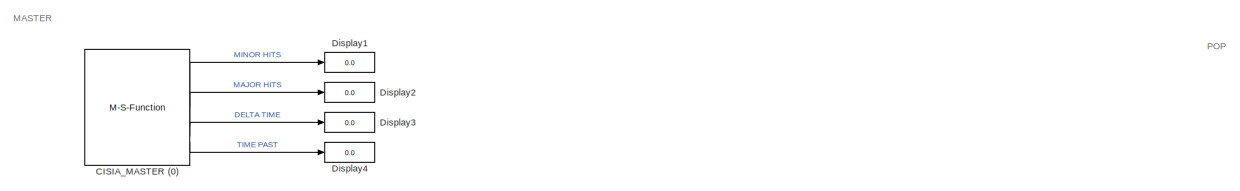
[diagram: root canvas - part 1/17, top left region]
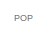
[diagram: root canvas - part 2/17, top right region]
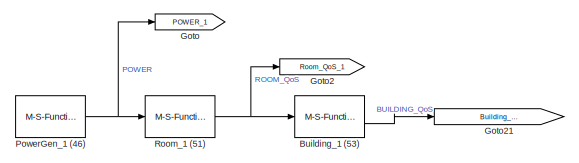
[diagram: root canvas - part 3/17, top center region]
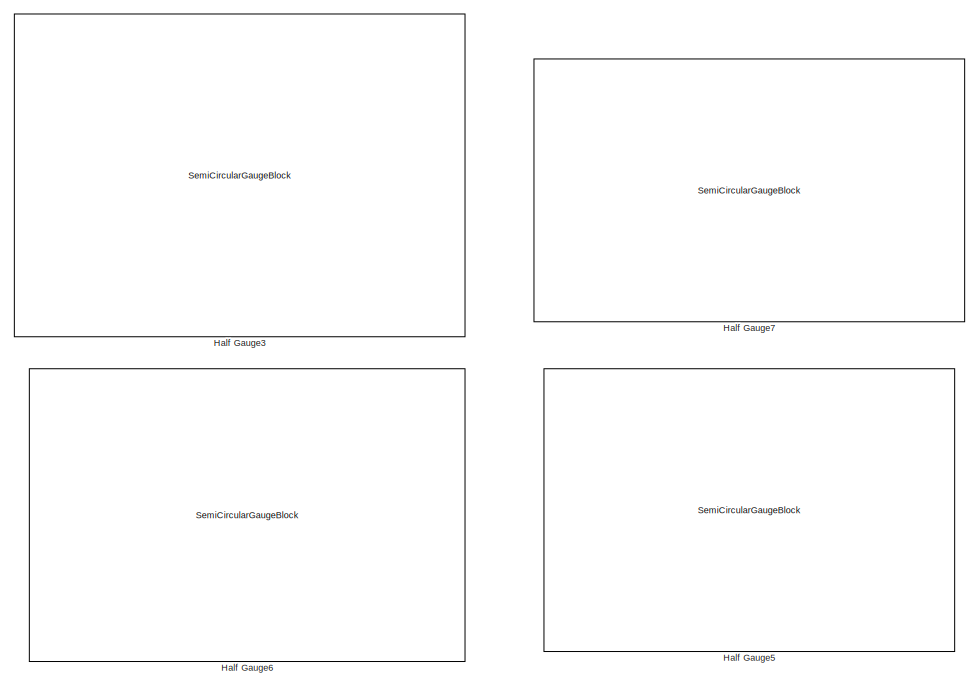
[diagram: root canvas - part 4/17, top left region]
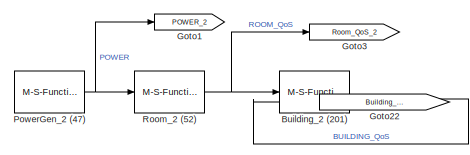
[diagram: root canvas - part 5/17, top right region]
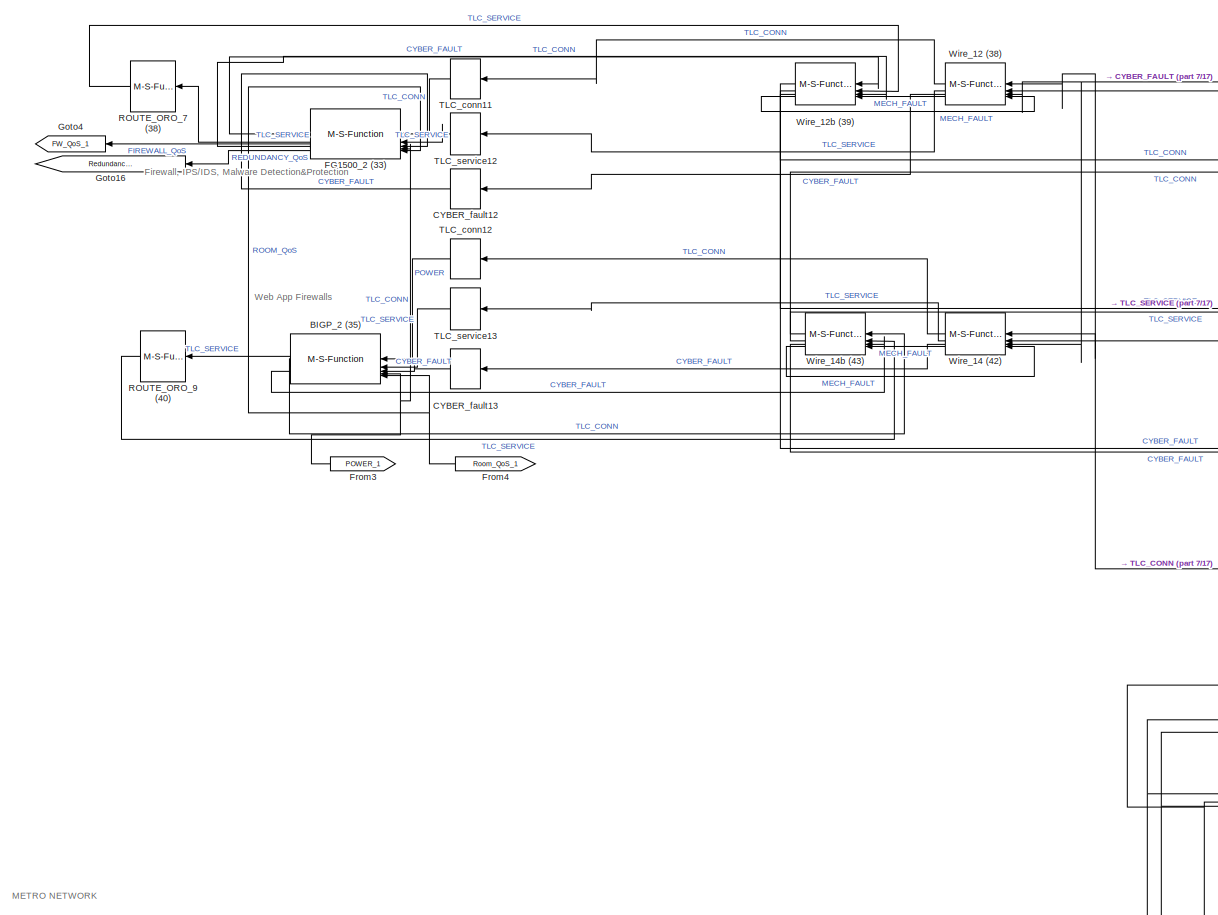
[diagram: root canvas - part 6/17, top left region]
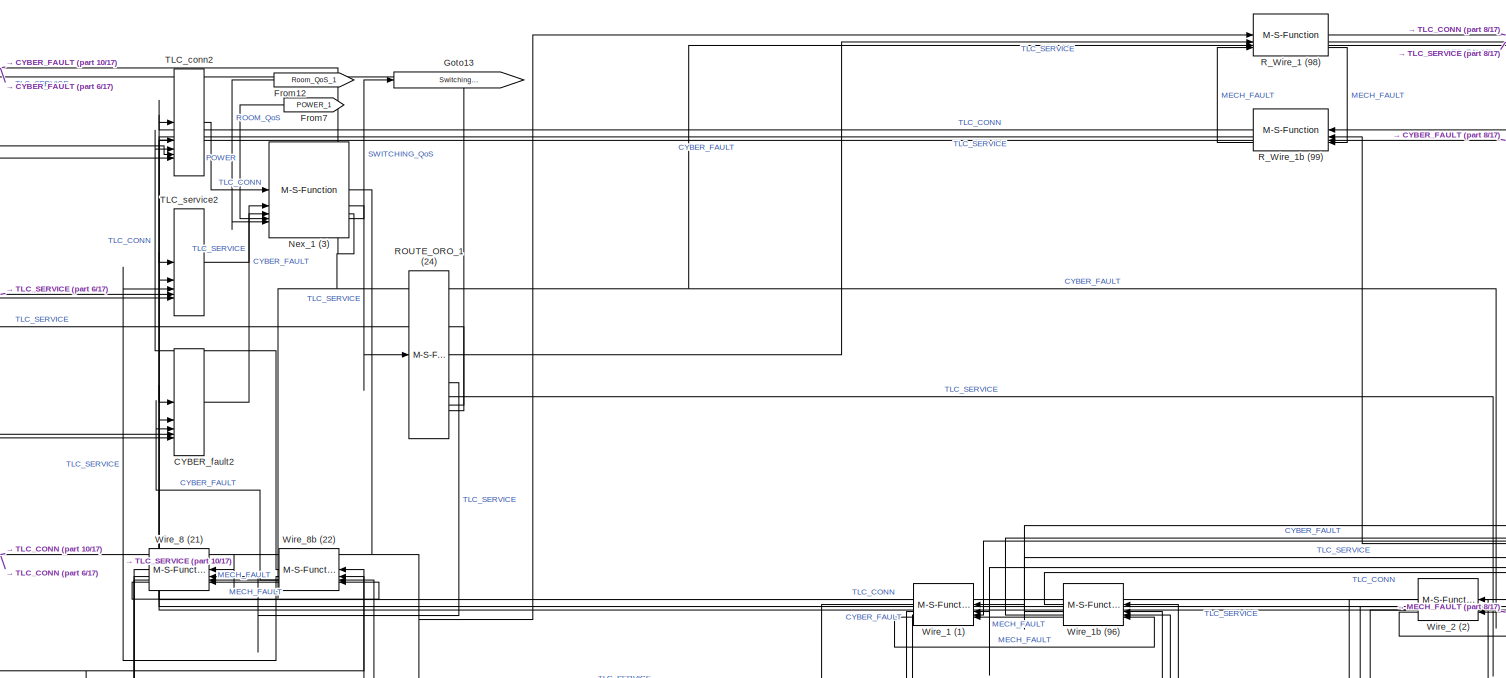
[diagram: root canvas - part 7/17, top center region]
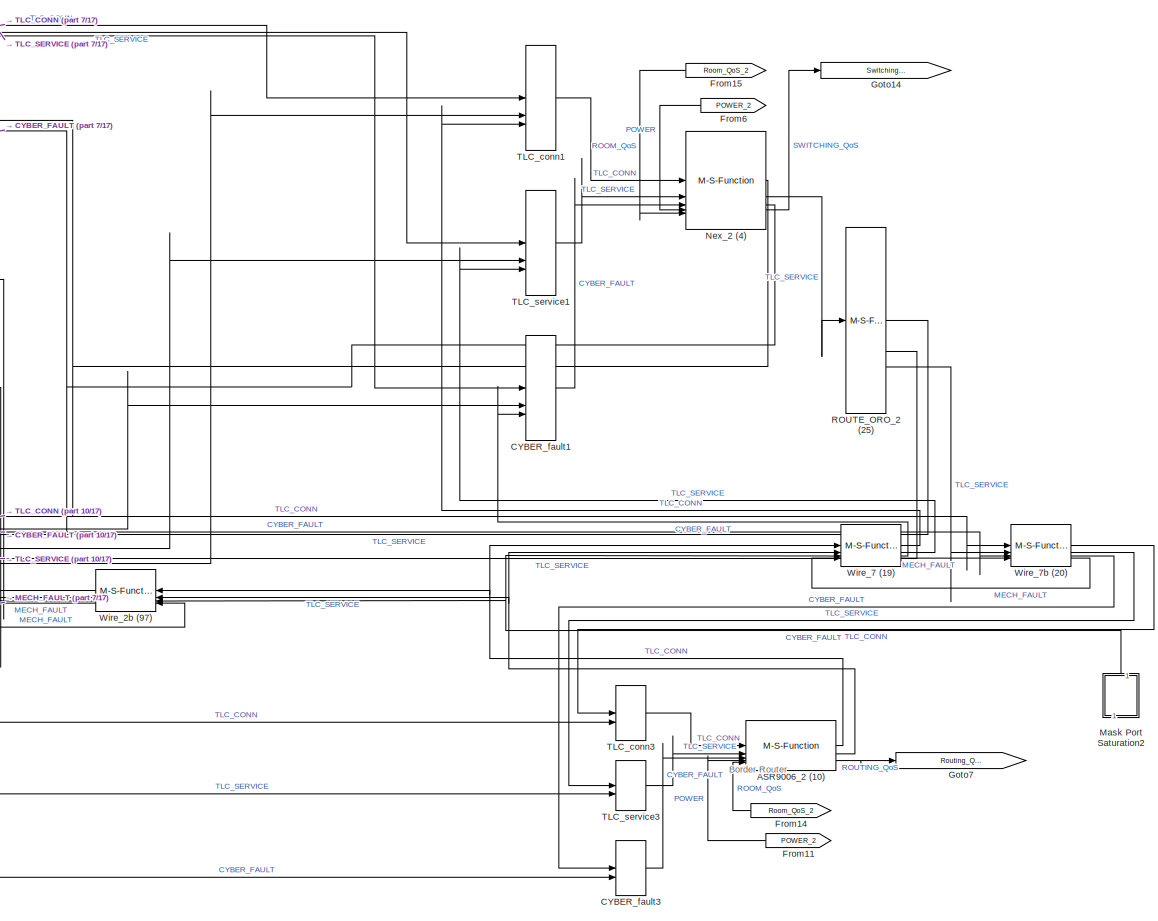
[diagram: root canvas - part 8/17, top right region]
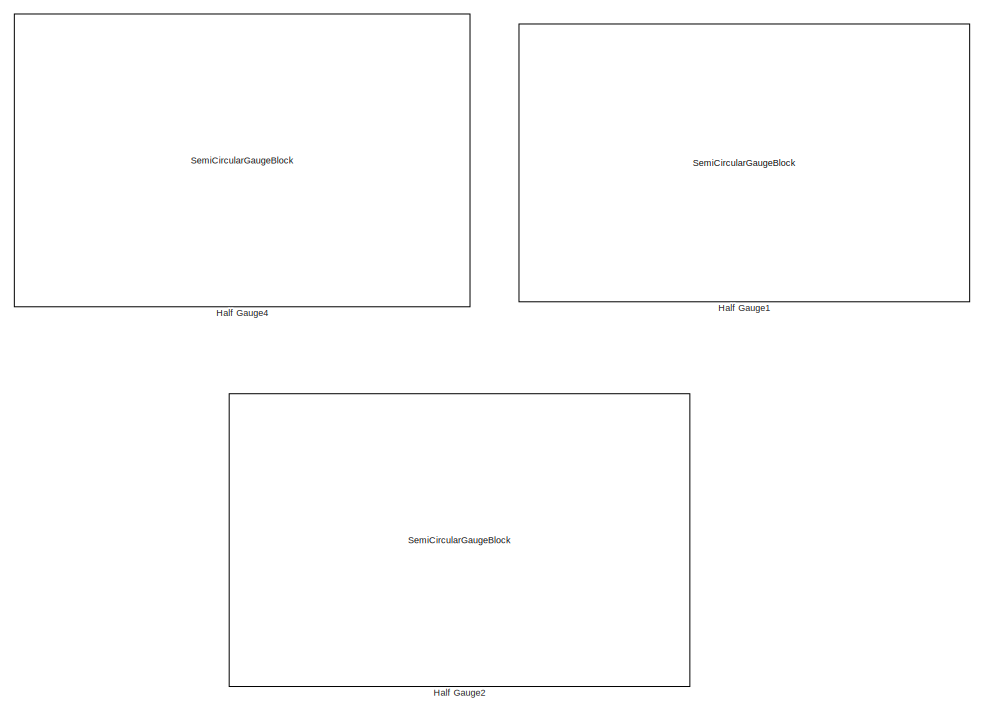
[diagram: root canvas - part 9/17, middle left region]
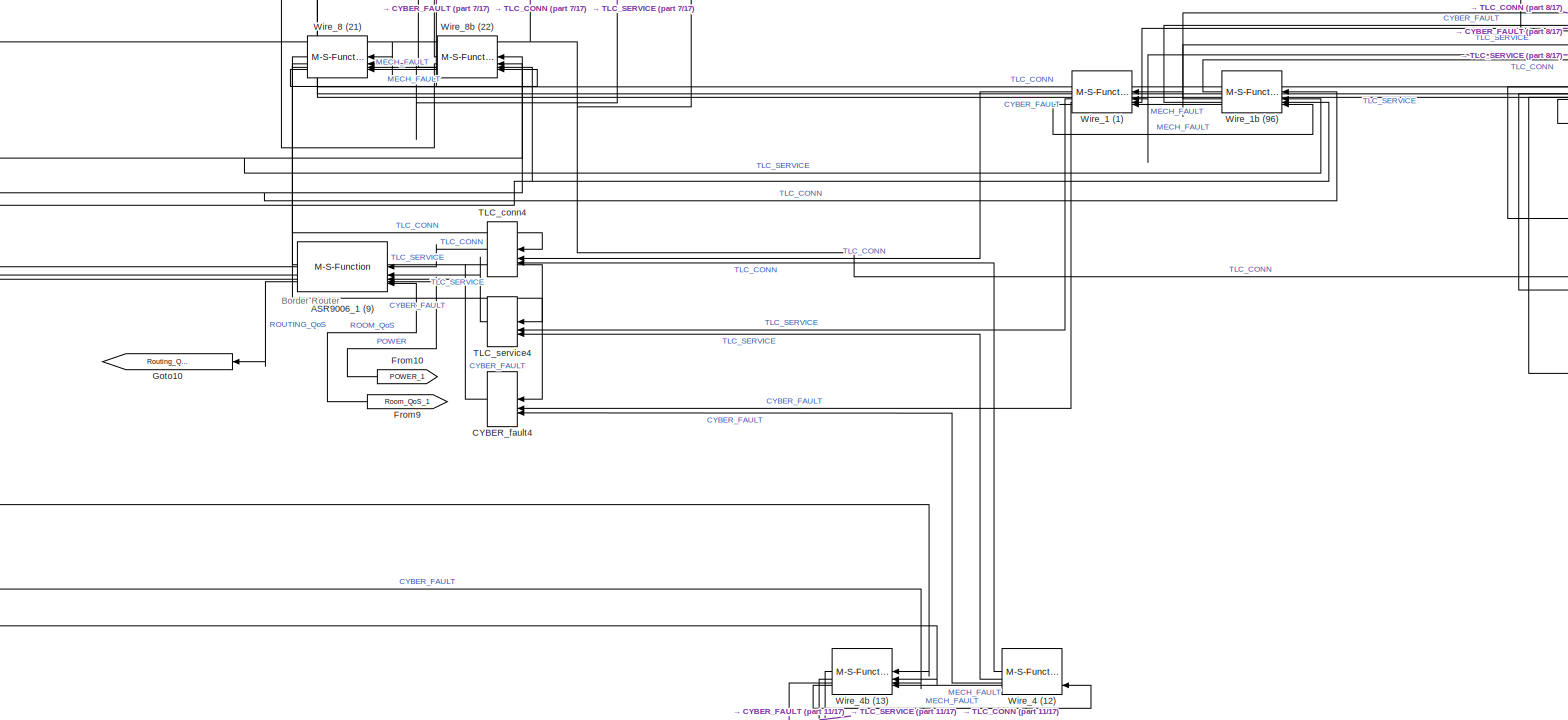
[diagram: root canvas - part 10/17, central region]
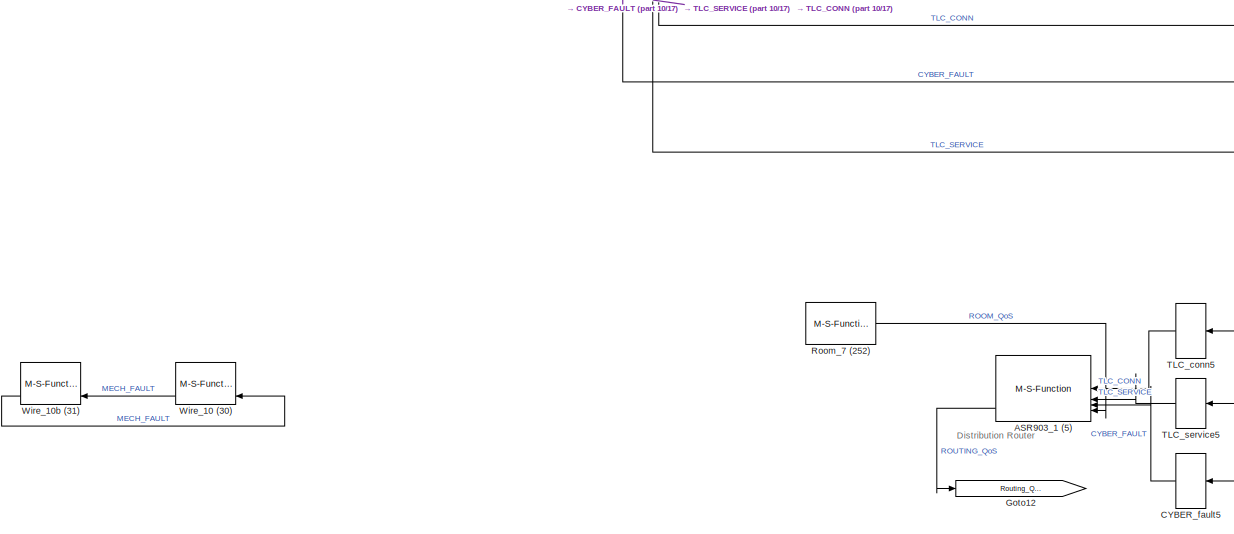
[diagram: root canvas - part 11/17, central region]
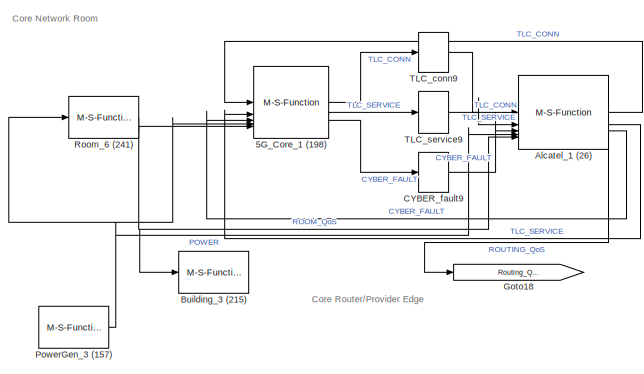
[diagram: root canvas - part 12/17, middle left region]
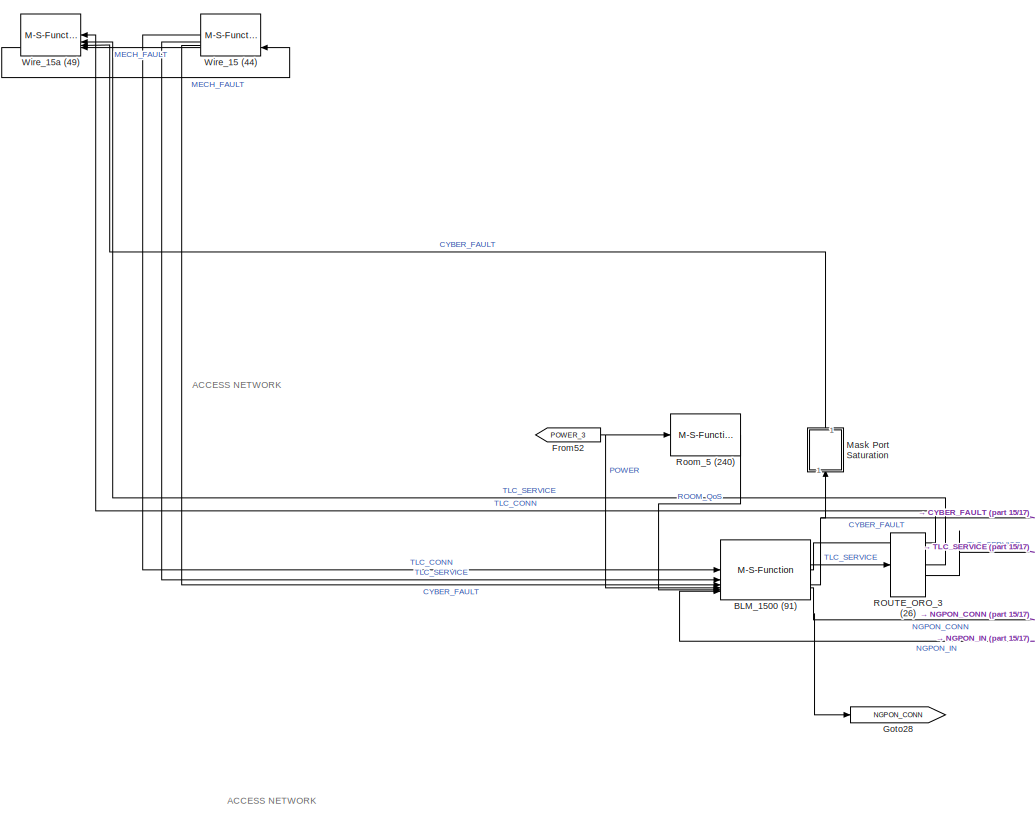
[diagram: root canvas - part 13/17, bottom right region]
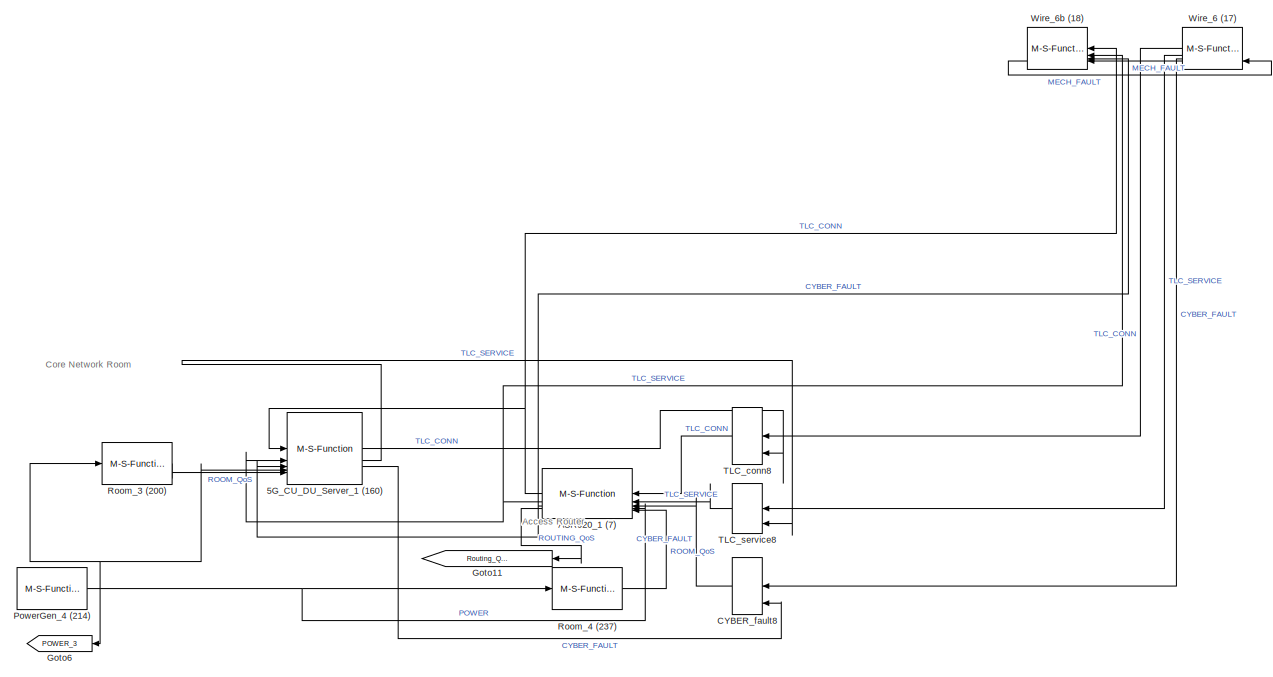
[diagram: root canvas - part 14/17, bottom center region]
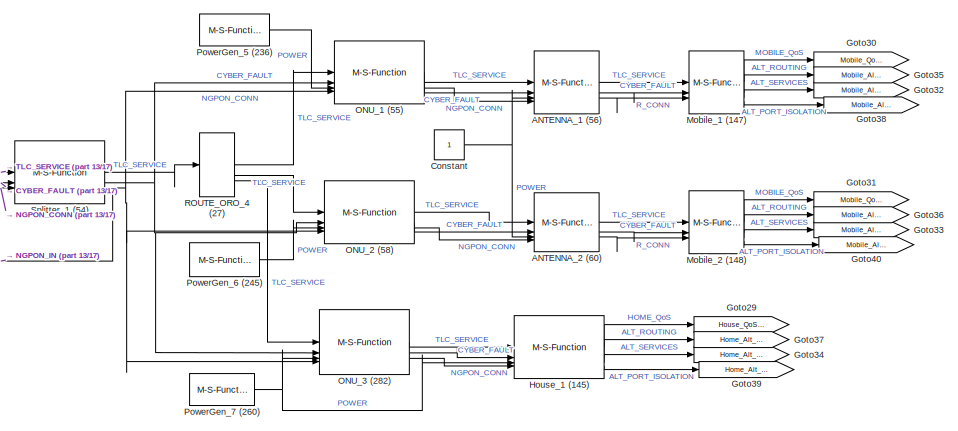
[diagram: root canvas - part 15/17, bottom right region]
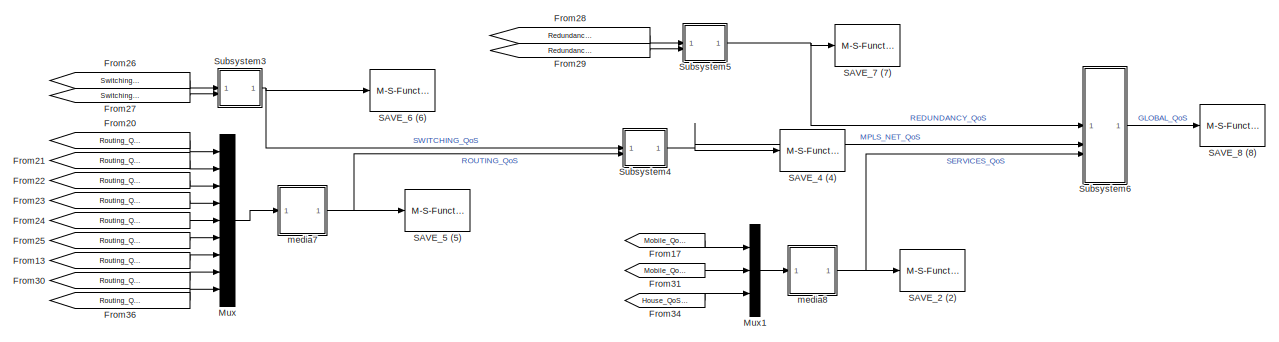
[diagram: root canvas - part 16/17, bottom center region]
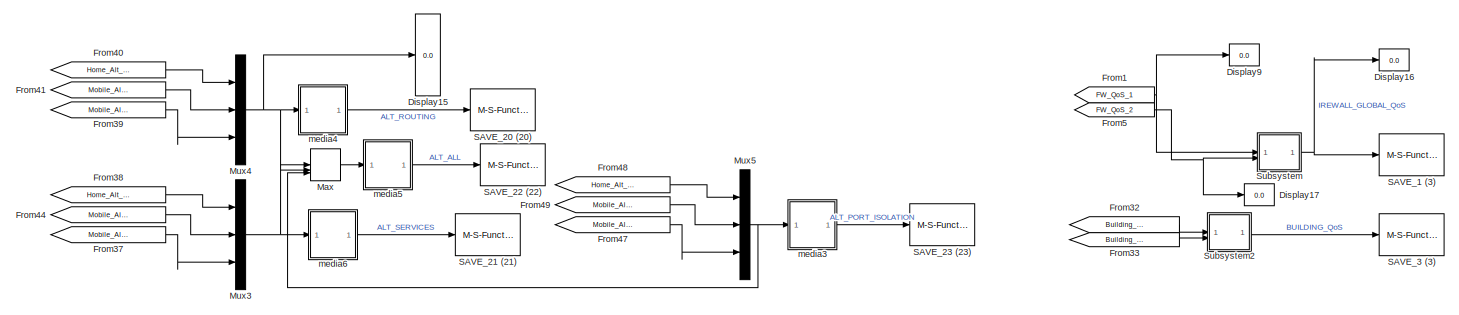
[diagram: root canvas - part 17/17, bottom left region]
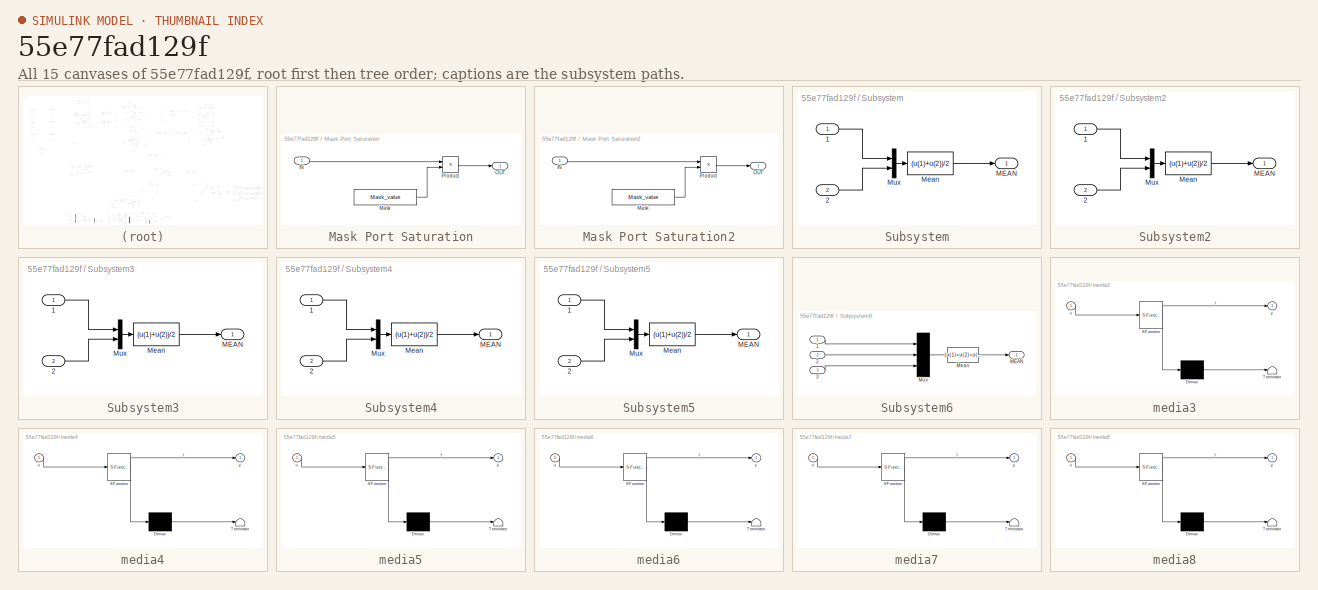
[diagram: thumbnail index - all 15 canvases of the model, root first then tree order]
MODEL slx_55e77fad129f
KIND model
CONFIG AbsTol = auto
CONFIG EnableMultiTasking = off
CONFIG FixedStep = auto
CONFIG MaxStep = auto
CONFIG MinStep = auto
CONFIG RelTol = 1e-3
CONFIG SampleTimeConstraint = Unconstrained
CONFIG SolverName = VariableStepAuto
CONFIG StartTime = 0.0
CONFIG StopTime = 2
BLOCK [M-S-Function] 5G_CU_DU_Server_1 (160)
  FunctionName = cisia_msfun
  Parameters = Parameter1, Parameter2, Parameter3, resources, Parameter10, codeupdate, step_received, step_computed, dynamic_computed, step_sended, id_entity, id_project, id_type, name_type, color
BLOCK [M-S-Function] 5G_Core_1 (198)
  FunctionName = cisia_msfun
  Parameters = Parameter1, Parameter2, Parameter3, resources, Parameter10, codeupdate, step_received, step_computed, dynamic_computed, step_sended, id_entity, id_project, id_type, name_type, color
BLOCK [M-S-Function] ANTENNA_1 (56)
  FunctionName = cisia_msfun
  Parameters = Parameter1, Parameter2, Parameter3, resources, Parameter10, codeupdate, step_received, step_computed, dynamic_computed, step_sended, id_entity, id_project, id_type, name_type, color
BLOCK [M-S-Function] ANTENNA_2 (60)
  FunctionName = cisia_msfun
  Parameters = Parameter1, Parameter2, Parameter3, resources, Parameter10, codeupdate, step_received, step_computed, dynamic_computed, step_sended, id_entity, id_project, id_type, name_type, color
BLOCK [M-S-Function] ASR9006_1 (9)
  FunctionName = cisia_msfun
  Parameters = Parameter1, Parameter2, Parameter3, resources, Parameter10, codeupdate, step_received, step_computed, dynamic_computed, step_sended, id_entity, id_project, id_type, name_type, color
BLOCK [M-S-Function] ASR9006_2 (10)
  FunctionName = cisia_msfun
  NameLocation = top
  Parameters = Parameter1, Parameter2, Parameter3, resources, Parameter10, codeupdate, step_received, step_computed, dynamic_computed, step_sended, id_entity, id_project, id_type, name_type, color
BLOCK [M-S-Function] ASR903_1 (5)
  FunctionName = cisia_msfun
  NameLocation = top
  Parameters = Parameter1, Parameter2, Parameter3, resources, Parameter10, codeupdate, step_received, step_computed, dynamic_computed, step_sended, id_entity, id_project, id_type, name_type, color
BLOCK [M-S-Function] ASR920_1 (7)
  FunctionName = cisia_msfun
  NameLocation = top
  Parameters = Parameter1, Parameter2, Parameter3, resources, Parameter10, codeupdate, step_received, step_computed, dynamic_computed, step_sended, id_entity, id_project, id_type, name_type, color
BLOCK [M-S-Function] Alcatel_1 (26)
  FunctionName = cisia_msfun
  Parameters = Parameter1, Parameter2, Parameter3, resources, Parameter10, codeupdate, step_received, step_computed, dynamic_computed, step_sended, id_entity, id_project, id_type, name_type, color
BLOCK [M-S-Function] BIGP_2 (35)
  FunctionName = cisia_msfun
  NameLocation = top
  Parameters = Parameter1, Parameter2, Parameter3, resources, Parameter10, codeupdate, step_received, step_computed, dynamic_computed, step_sended, id_entity, id_project, id_type, name_type, color
BLOCK [M-S-Function] BLM_1500 (91)
  FunctionName = cisia_msfun
  Parameters = Parameter1, Parameter2, Parameter3, resources, Parameter10, codeupdate, step_received, step_computed, dynamic_computed, step_sended, id_entity, id_project, id_type, name_type, color
BLOCK [M-S-Function] Building_1 (53)
  FunctionName = cisia_msfun
  Parameters = Parameter1, Parameter2, Parameter3, resources, Parameter10, codeupdate, step_received, step_computed, dynamic_computed, step_sended, id_entity, id_project, id_type, name_type, color
BLOCK [M-S-Function] Building_2 (201)
  FunctionName = cisia_msfun
  Parameters = Parameter1, Parameter2, Parameter3, resources, Parameter10, codeupdate, step_received, step_computed, dynamic_computed, step_sended, id_entity, id_project, id_type, name_type, color
BLOCK [M-S-Function] Building_3 (215)
  FunctionName = cisia_msfun
  Parameters = Parameter1, Parameter2, Parameter3, resources, Parameter10, codeupdate, step_received, step_computed, dynamic_computed, step_sended, id_entity, id_project, id_type, name_type, color
BLOCK [M-S-Function] CISIA_MASTER (0)
  FunctionName = cisia_msfun
  Parameters = Parameter1, Parameter2, Parameter3, resources, Parameter4, Parameter5, Parameter6, Parameter7, Parameter8, Parameter9,Parameter11
BLOCK [MinMax] CYBER_fault1
  Function = max
  Inputs = 6
BLOCK [MinMax] CYBER_fault12
  Function = max
  Inputs = 2
  NameLocation = top
BLOCK [MinMax] CYBER_fault13
  Function = max
  Inputs = 2
  NameLocation = top
BLOCK [MinMax] CYBER_fault2
  Function = max
  Inputs = 6
BLOCK [MinMax] CYBER_fault3
  Function = max
  Inputs = 4
BLOCK [MinMax] CYBER_fault4
  Function = max
  Inputs = 4
  NameLocation = top
BLOCK [MinMax] CYBER_fault5
  Function = max
  Inputs = 4
  NameLocation = top
BLOCK [MinMax] CYBER_fault8
  Function = max
  Inputs = 4
  NameLocation = top
BLOCK [MinMax] CYBER_fault9
  Function = max
  Inputs = 2
BLOCK [Constant] Constant
BLOCK [Display] Display1
  Decimation = 1
BLOCK [Display] Display15
  Decimation = 1
BLOCK [Display] Display16
  Decimation = 1
BLOCK [Display] Display17
  Decimation = 1
BLOCK [Display] Display2
  Decimation = 1
BLOCK [Display] Display3
  Decimation = 1
BLOCK [Display] Display4
  Decimation = 1
BLOCK [Display] Display9
  Decimation = 1
BLOCK [M-S-Function] FG1500_2 (33)
  FunctionName = cisia_msfun
  NameLocation = top
  Parameters = Parameter1, Parameter2, Parameter3, resources, Parameter10, codeupdate, step_received, step_computed, dynamic_computed, step_sended, id_entity, id_project, id_type, name_type, color
BLOCK [From] From1
  GotoTag = FW_QoS_1
BLOCK [From] From10
  GotoTag = POWER_1
  NameLocation = top
BLOCK [From] From11
  GotoTag = POWER_2
  NameLocation = top
BLOCK [From] From12
  GotoTag = Room_QoS_1
  NameLocation = top
BLOCK [From] From13
  GotoTag = Routing_QoS_Alcatel_1
BLOCK [From] From14
  GotoTag = Room_QoS_2
  NameLocation = top
BLOCK [From] From15
  GotoTag = Room_QoS_2
  NameLocation = top
BLOCK [From] From17
  GotoTag = Mobile_QoS_1
BLOCK [From] From20
  GotoTag = Routing_QoS_9006_1
BLOCK [From] From21
  GotoTag = Routing_QoS_9006_2
BLOCK [From] From22
  GotoTag = Routing_QoS_903_1
BLOCK [From] From23
  GotoTag = Routing_QoS_903_2
BLOCK [From] From24
  GotoTag = Routing_QoS_920_1
BLOCK [From] From25
  GotoTag = Routing_QoS_920_2
BLOCK [From] From26
  GotoTag = Switching_QoS_Nex_1
BLOCK [From] From27
  GotoTag = Switching_QoS_Nex_2
BLOCK [From] From28
  GotoTag = Redundancy_QoS_FG1500_1
BLOCK [From] From29
  GotoTag = Redundancy_QoS_FG1500_2
BLOCK [From] From3
  GotoTag = POWER_1
  NameLocation = top
BLOCK [From] From30
  GotoTag = Routing_QoS_Alcatel_2
BLOCK [From] From31
  GotoTag = Mobile_QoS_2
BLOCK [From] From32
  GotoTag = Building_QoS_1
BLOCK [From] From33
  GotoTag = Building_QoS_2
BLOCK [From] From34
  GotoTag = House_QoS_1
BLOCK [From] From36
  GotoTag = Routing_QoS_7606a
BLOCK [From] From37
  GotoTag = Mobile_Alt_Serv_2
BLOCK [From] From38
  GotoTag = Home_Alt_Serv_1
BLOCK [From] From39
  GotoTag = Mobile_Alt_Rout_2
BLOCK [From] From4
  GotoTag = Room_QoS_1
  NameLocation = top
BLOCK [From] From40
  GotoTag = Home_Alt_Rout_1
BLOCK [From] From41
  GotoTag = Mobile_Alt_Rout_1
BLOCK [From] From44
  GotoTag = Mobile_Alt_Serv_1
BLOCK [From] From47
  GotoTag = Mobile_Alt_Port_2
BLOCK [From] From48
  GotoTag = Home_Alt_Port_1
BLOCK [From] From49
  GotoTag = Mobile_Alt_Port_1
BLOCK [From] From5
  GotoTag = FW_QoS_2
BLOCK [From] From52
  GotoTag = POWER_3
BLOCK [From] From6
  GotoTag = POWER_2
  NameLocation = top
BLOCK [From] From7
  GotoTag = POWER_1
  NameLocation = top
BLOCK [From] From9
  GotoTag = Room_QoS_1
  NameLocation = top
BLOCK [Goto] Goto
  GotoTag = POWER_1
BLOCK [Goto] Goto1
  GotoTag = POWER_2
BLOCK [Goto] Goto10
  GotoTag = Routing_QoS_9006_1
  NameLocation = top
BLOCK [Goto] Goto11
  GotoTag = Routing_QoS_920_1
  NameLocation = top
BLOCK [Goto] Goto12
  GotoTag = Routing_QoS_903_1
BLOCK [Goto] Goto13
  GotoTag = Switching_QoS_Nex_1
BLOCK [Goto] Goto14
  GotoTag = Switching_QoS_Nex_2
BLOCK [Goto] Goto16
  GotoTag = Redundancy_QoS_FG1500_2
  NameLocation = top
BLOCK [Goto] Goto18
  GotoTag = Routing_QoS_Alcatel_1
BLOCK [Goto] Goto2
  GotoTag = Room_QoS_1
BLOCK [Goto] Goto21
  GotoTag = Building_QoS_1
BLOCK [Goto] Goto22
  GotoTag = Building_QoS_2
BLOCK [Goto] Goto28
  GotoTag = NGPON_CONN
BLOCK [Goto] Goto29
  GotoTag = House_QoS_1
BLOCK [Goto] Goto3
  GotoTag = Room_QoS_2
BLOCK [Goto] Goto30
  GotoTag = Mobile_QoS_1
BLOCK [Goto] Goto31
  GotoTag = Mobile_QoS_2
BLOCK [Goto] Goto32
  GotoTag = Mobile_Alt_Serv_1
BLOCK [Goto] Goto33
  GotoTag = Mobile_Alt_Serv_2
BLOCK [Goto] Goto34
  GotoTag = Home_Alt_Serv_1
BLOCK [Goto] Goto35
  GotoTag = Mobile_Alt_Rout_1
BLOCK [Goto] Goto36
  GotoTag = Mobile_Alt_Rout_2
BLOCK [Goto] Goto37
  GotoTag = Home_Alt_Rout_1
BLOCK [Goto] Goto38
  GotoTag = Mobile_Alt_Port_1
BLOCK [Goto] Goto39
  GotoTag = Home_Alt_Port_1
BLOCK [Goto] Goto4
  GotoTag = FW_QoS_1
  NameLocation = top
BLOCK [Goto] Goto40
  GotoTag = Mobile_Alt_Port_2
BLOCK [Goto] Goto6
  GotoTag = POWER_3
  NameLocation = top
BLOCK [Goto] Goto7
  GotoTag = Routing_QoS_9006_2
BLOCK [SemiCircularGaugeBlock] Half Gauge1
  ScaleMax = 1
BLOCK [SemiCircularGaugeBlock] Half Gauge2
  ScaleMax = 1
BLOCK [SemiCircularGaugeBlock] Half Gauge3
  ScaleMax = 1
BLOCK [SemiCircularGaugeBlock] Half Gauge4
  ScaleMax = 1
BLOCK [SemiCircularGaugeBlock] Half Gauge5
  ScaleMax = 1
BLOCK [SemiCircularGaugeBlock] Half Gauge6
  ScaleMax = 1
BLOCK [SemiCircularGaugeBlock] Half Gauge7
  ScaleMax = 1
BLOCK [M-S-Function] House_1 (145)
  FunctionName = cisia_msfun
  Parameters = Parameter1, Parameter2, Parameter3, resources, Parameter10, codeupdate, step_received, step_computed, dynamic_computed, step_sended, id_entity, id_project, id_type, name_type, color
BLOCK [SubSystem] Mask Port Saturation
  NameLocation = right
BLOCK [Inport] Mask Port Saturation/IN
BLOCK [Constant] Mask Port Saturation/Mask
  Value = Mask_value
BLOCK [Outport] Mask Port Saturation/OUT
BLOCK [Product] Mask Port Saturation/Product
BLOCK [SubSystem] Mask Port Saturation2
  NameLocation = right
BLOCK [Inport] Mask Port Saturation2/IN
BLOCK [Constant] Mask Port Saturation2/Mask
  Value = Mask_value
BLOCK [Outport] Mask Port Saturation2/OUT
BLOCK [Product] Mask Port Saturation2/Product
BLOCK [MinMax] Max
  Function = max
  Inputs = 3
BLOCK [M-S-Function] Mobile_1 (147)
  FunctionName = cisia_msfun
  Parameters = Parameter1, Parameter2, Parameter3, resources, Parameter10, codeupdate, step_received, step_computed, dynamic_computed, step_sended, id_entity, id_project, id_type, name_type, color
BLOCK [M-S-Function] Mobile_2 (148)
  FunctionName = cisia_msfun
  Parameters = Parameter1, Parameter2, Parameter3, resources, Parameter10, codeupdate, step_received, step_computed, dynamic_computed, step_sended, id_entity, id_project, id_type, name_type, color
BLOCK [Mux] Mux
  DisplayOption = bar
  Inputs = 9
BLOCK [Mux] Mux1
  DisplayOption = bar
  Inputs = 3
BLOCK [Mux] Mux3
  DisplayOption = bar
  Inputs = 3
BLOCK [Mux] Mux4
  DisplayOption = bar
  Inputs = 3
BLOCK [Mux] Mux5
  DisplayOption = bar
  Inputs = 3
BLOCK [M-S-Function] Nex_1 (3)
  FunctionName = cisia_msfun
  Parameters = Parameter1, Parameter2, Parameter3, resources, Parameter10, codeupdate, step_received, step_computed, dynamic_computed, step_sended, id_entity, id_project, id_type, name_type, color
BLOCK [M-S-Function] Nex_2 (4)
  FunctionName = cisia_msfun
  Parameters = Parameter1, Parameter2, Parameter3, resources, Parameter10, codeupdate, step_received, step_computed, dynamic_computed, step_sended, id_entity, id_project, id_type, name_type, color
BLOCK [M-S-Function] ONU_1 (55)
  FunctionName = cisia_msfun
  Parameters = Parameter1, Parameter2, Parameter3, resources, Parameter10, codeupdate, step_received, step_computed, dynamic_computed, step_sended, id_entity, id_project, id_type, name_type, color
BLOCK [M-S-Function] ONU_2 (58)
  FunctionName = cisia_msfun
  Parameters = Parameter1, Parameter2, Parameter3, resources, Parameter10, codeupdate, step_received, step_computed, dynamic_computed, step_sended, id_entity, id_project, id_type, name_type, color
BLOCK [M-S-Function] ONU_3 (282)
  FunctionName = cisia_msfun
  Parameters = Parameter1, Parameter2, Parameter3, resources, Parameter10, codeupdate, step_received, step_computed, dynamic_computed, step_sended, id_entity, id_project, id_type, name_type, color
BLOCK [M-S-Function] PowerGen_1 (46)
  FunctionName = cisia_msfun
  Parameters = Parameter1, Parameter2, Parameter3, resources, Parameter10, codeupdate, step_received, step_computed, dynamic_computed, step_sended, id_entity, id_project, id_type, name_type, color
BLOCK [M-S-Function] PowerGen_2 (47)
  FunctionName = cisia_msfun
  Parameters = Parameter1, Parameter2, Parameter3, resources, Parameter10, codeupdate, step_received, step_computed, dynamic_computed, step_sended, id_entity, id_project, id_type, name_type, color
BLOCK [M-S-Function] PowerGen_3 (157)
  FunctionName = cisia_msfun
  Parameters = Parameter1, Parameter2, Parameter3, resources, Parameter10, codeupdate, step_received, step_computed, dynamic_computed, step_sended, id_entity, id_project, id_type, name_type, color
BLOCK [M-S-Function] PowerGen_4 (214)
  FunctionName = cisia_msfun
  Parameters = Parameter1, Parameter2, Parameter3, resources, Parameter10, codeupdate, step_received, step_computed, dynamic_computed, step_sended, id_entity, id_project, id_type, name_type, color
BLOCK [M-S-Function] PowerGen_5 (236)
  FunctionName = cisia_msfun
  Parameters = Parameter1, Parameter2, Parameter3, resources, Parameter10, codeupdate, step_received, step_computed, dynamic_computed, step_sended, id_entity, id_project, id_type, name_type, color
BLOCK [M-S-Function] PowerGen_6 (245)
  FunctionName = cisia_msfun
  Parameters = Parameter1, Parameter2, Parameter3, resources, Parameter10, codeupdate, step_received, step_computed, dynamic_computed, step_sended, id_entity, id_project, id_type, name_type, color
BLOCK [M-S-Function] PowerGen_7 (260)
  FunctionName = cisia_msfun
  Parameters = Parameter1, Parameter2, Parameter3, resources, Parameter10, codeupdate, step_received, step_computed, dynamic_computed, step_sended, id_entity, id_project, id_type, name_type, color
BLOCK [M-S-Function] ROUTE_ORO_1 (24)
  FunctionName = cisia_msfun
  Parameters = Parameter1, Parameter2, Parameter3, Parameter4, Parameter5, Parameter6, Parameter7
BLOCK [M-S-Function] ROUTE_ORO_2 (25)
  FunctionName = cisia_msfun
  Parameters = Parameter1, Parameter2, Parameter3, Parameter4, Parameter5, Parameter6, Parameter7
BLOCK [M-S-Function] ROUTE_ORO_3 (26)
  FunctionName = cisia_msfun
  Parameters = Parameter1, Parameter2, Parameter3, Parameter4, Parameter5, Parameter6, Parameter7
BLOCK [M-S-Function] ROUTE_ORO_4 (27)
  FunctionName = cisia_msfun
  Parameters = Parameter1, Parameter2, Parameter3, Parameter4, Parameter5, Parameter6, Parameter7
BLOCK [M-S-Function] ROUTE_ORO_7 (38)
  FunctionName = cisia_msfun
  NameLocation = top
  Parameters = Parameter1, Parameter2, Parameter3, Parameter4, Parameter5, Parameter6, Parameter7
BLOCK [M-S-Function] ROUTE_ORO_9 (40)
  FunctionName = cisia_msfun
  NameLocation = top
  Parameters = Parameter1, Parameter2, Parameter3, Parameter4, Parameter5, Parameter6, Parameter7
BLOCK [M-S-Function] R_Wire_1 (98)
  FunctionName = cisia_msfun
  Parameters = Parameter1, Parameter2, Parameter3, resources, Parameter10, codeupdate, step_received, step_computed, dynamic_computed, step_sended, id_entity, id_project, id_type, name_type, color
BLOCK [M-S-Function] R_Wire_1b (99)
  FunctionName = cisia_msfun
  NameLocation = top
  Parameters = Parameter1, Parameter2, Parameter3, resources, Parameter10, codeupdate, step_received, step_computed, dynamic_computed, step_sended, id_entity, id_project, id_type, name_type, color
BLOCK [M-S-Function] Room_1 (51)
  FunctionName = cisia_msfun
  Parameters = Parameter1, Parameter2, Parameter3, resources, Parameter10, codeupdate, step_received, step_computed, dynamic_computed, step_sended, id_entity, id_project, id_type, name_type, color
BLOCK [M-S-Function] Room_2 (52)
  FunctionName = cisia_msfun
  Parameters = Parameter1, Parameter2, Parameter3, resources, Parameter10, codeupdate, step_received, step_computed, dynamic_computed, step_sended, id_entity, id_project, id_type, name_type, color
BLOCK [M-S-Function] Room_3 (200)
  FunctionName = cisia_msfun
  Parameters = Parameter1, Parameter2, Parameter3, resources, Parameter10, codeupdate, step_received, step_computed, dynamic_computed, step_sended, id_entity, id_project, id_type, name_type, color
BLOCK [M-S-Function] Room_4 (237)
  FunctionName = cisia_msfun
  Parameters = Parameter1, Parameter2, Parameter3, resources, Parameter10, codeupdate, step_received, step_computed, dynamic_computed, step_sended, id_entity, id_project, id_type, name_type, color
BLOCK [M-S-Function] Room_5 (240)
  FunctionName = cisia_msfun
  Parameters = Parameter1, Parameter2, Parameter3, resources, Parameter10, codeupdate, step_received, step_computed, dynamic_computed, step_sended, id_entity, id_project, id_type, name_type, color
BLOCK [M-S-Function] Room_6 (241)
  FunctionName = cisia_msfun
  Parameters = Parameter1, Parameter2, Parameter3, resources, Parameter10, codeupdate, step_received, step_computed, dynamic_computed, step_sended, id_entity, id_project, id_type, name_type, color
BLOCK [M-S-Function] Room_7 (252)
  FunctionName = cisia_msfun
  Parameters = Parameter1, Parameter2, Parameter3, resources, Parameter10, codeupdate, step_received, step_computed, dynamic_computed, step_sended, id_entity, id_project, id_type, name_type, color
BLOCK [M-S-Function] SAVE_1 (3)
  FunctionName = cisia_msfun
  Parameters = Parameter1, Parameter2, Parameter3, Parameter4,Parameter5,Parameter6,Parameter7
BLOCK [M-S-Function] SAVE_2 (2)
  FunctionName = cisia_msfun
  Parameters = Parameter1, Parameter2, Parameter3, Parameter4,Parameter5,Parameter6,Parameter7
BLOCK [M-S-Function] SAVE_20 (20)
  FunctionName = cisia_msfun
  Parameters = Parameter1, Parameter2, Parameter3, Parameter4,Parameter5,Parameter6,Parameter7
BLOCK [M-S-Function] SAVE_21 (21)
  FunctionName = cisia_msfun
  Parameters = Parameter1, Parameter2, Parameter3, Parameter4,Parameter5,Parameter6,Parameter7
BLOCK [M-S-Function] SAVE_22 (22)
  FunctionName = cisia_msfun
  Parameters = Parameter1, Parameter2, Parameter3, Parameter4,Parameter5,Parameter6,Parameter7
BLOCK [M-S-Function] SAVE_23 (23)
  FunctionName = cisia_msfun
  Parameters = Parameter1, Parameter2, Parameter3, Parameter4,Parameter5,Parameter6,Parameter7
BLOCK [M-S-Function] SAVE_3 (3)
  FunctionName = cisia_msfun
  Parameters = Parameter1, Parameter2, Parameter3, Parameter4,Parameter5,Parameter6,Parameter7
BLOCK [M-S-Function] SAVE_4 (4)
  FunctionName = cisia_msfun
  Parameters = Parameter1, Parameter2, Parameter3, Parameter4,Parameter5,Parameter6,Parameter7
BLOCK [M-S-Function] SAVE_5 (5)
  FunctionName = cisia_msfun
  Parameters = Parameter1, Parameter2, Parameter3, Parameter4,Parameter5,Parameter6,Parameter7
BLOCK [M-S-Function] SAVE_6 (6)
  FunctionName = cisia_msfun
  Parameters = Parameter1, Parameter2, Parameter3, Parameter4,Parameter5,Parameter6,Parameter7
BLOCK [M-S-Function] SAVE_7 (7)
  FunctionName = cisia_msfun
  Parameters = Parameter1, Parameter2, Parameter3, Parameter4,Parameter5,Parameter6,Parameter7
BLOCK [M-S-Function] SAVE_8 (8)
  FunctionName = cisia_msfun
  Parameters = Parameter1, Parameter2, Parameter3, Parameter4,Parameter5,Parameter6,Parameter7
BLOCK [M-S-Function] Splitter_1 (54)
  FunctionName = cisia_msfun
  Parameters = Parameter1, Parameter2, Parameter3, resources, Parameter10, codeupdate, step_received, step_computed, dynamic_computed, step_sended, id_entity, id_project, id_type, name_type, color
BLOCK [SubSystem] Subsystem
BLOCK [Inport] Subsystem/1
BLOCK [Inport] Subsystem/2
  Port = 2
BLOCK [Outport] Subsystem/MEAN
  VectorParamsAs1DForOutWhenUnconnected = off
BLOCK [Fcn] Subsystem/Mean
  Expr = (u(1)+u(2))/2
BLOCK [Mux] Subsystem/Mux
  DisplayOption = bar
  Inputs = 2
BLOCK [SubSystem] Subsystem2
BLOCK [Inport] Subsystem2/1
BLOCK [Inport] Subsystem2/2
  Port = 2
BLOCK [Outport] Subsystem2/MEAN
  VectorParamsAs1DForOutWhenUnconnected = off
BLOCK [Fcn] Subsystem2/Mean
  Expr = (u(1)+u(2))/2
BLOCK [Mux] Subsystem2/Mux
  DisplayOption = bar
  Inputs = 2
BLOCK [SubSystem] Subsystem3
BLOCK [Inport] Subsystem3/1
BLOCK [Inport] Subsystem3/2
  Port = 2
BLOCK [Outport] Subsystem3/MEAN
  VectorParamsAs1DForOutWhenUnconnected = off
BLOCK [Fcn] Subsystem3/Mean
  Expr = (u(1)+u(2))/2
BLOCK [Mux] Subsystem3/Mux
  DisplayOption = bar
  Inputs = 2
BLOCK [SubSystem] Subsystem4
BLOCK [Inport] Subsystem4/1
BLOCK [Inport] Subsystem4/2
  Port = 2
BLOCK [Outport] Subsystem4/MEAN
  VectorParamsAs1DForOutWhenUnconnected = off
BLOCK [Fcn] Subsystem4/Mean
  Expr = (u(1)+u(2))/2
BLOCK [Mux] Subsystem4/Mux
  DisplayOption = bar
  Inputs = 2
BLOCK [SubSystem] Subsystem5
BLOCK [Inport] Subsystem5/1
BLOCK [Inport] Subsystem5/2
  Port = 2
BLOCK [Outport] Subsystem5/MEAN
  VectorParamsAs1DForOutWhenUnconnected = off
BLOCK [Fcn] Subsystem5/Mean
  Expr = (u(1)+u(2))/2
BLOCK [Mux] Subsystem5/Mux
  DisplayOption = bar
  Inputs = 2
BLOCK [SubSystem] Subsystem6
BLOCK [Inport] Subsystem6/1
BLOCK [Inport] Subsystem6/2
  Port = 2
BLOCK [Inport] Subsystem6/3
  Port = 3
BLOCK [Outport] Subsystem6/MEAN
  VectorParamsAs1DForOutWhenUnconnected = off
BLOCK [Fcn] Subsystem6/Mean
  Expr = (u(1)+u(2)+u(3))/3
BLOCK [Mux] Subsystem6/Mux
  DisplayOption = bar
  Inputs = 3
BLOCK [MinMax] TLC_conn1
  Function = max
  Inputs = 6
BLOCK [MinMax] TLC_conn11
  Function = max
  Inputs = 2
  NameLocation = top
BLOCK [MinMax] TLC_conn12
  Function = max
  Inputs = 2
  NameLocation = top
BLOCK [MinMax] TLC_conn2
  Function = max
  Inputs = 6
BLOCK [MinMax] TLC_conn3
  Function = max
  Inputs = 4
BLOCK [MinMax] TLC_conn4
  Function = max
  Inputs = 4
  NameLocation = top
BLOCK [MinMax] TLC_conn5
  Function = max
  Inputs = 4
  NameLocation = top
BLOCK [MinMax] TLC_conn8
  Function = max
  Inputs = 4
  NameLocation = top
BLOCK [MinMax] TLC_conn9
  Function = max
  Inputs = 2
BLOCK [MinMax] TLC_service1
  Function = max
  Inputs = 6
BLOCK [MinMax] TLC_service12
  Function = max
  Inputs = 2
  NameLocation = top
BLOCK [MinMax] TLC_service13
  Function = max
  Inputs = 2
  NameLocation = top
BLOCK [MinMax] TLC_service2
  Function = max
  Inputs = 6
BLOCK [MinMax] TLC_service3
  Function = max
  Inputs = 4
BLOCK [MinMax] TLC_service4
  Function = max
  Inputs = 4
  NameLocation = top
BLOCK [MinMax] TLC_service5
  Function = max
  Inputs = 4
  NameLocation = top
BLOCK [MinMax] TLC_service8
  Function = max
  Inputs = 4
  NameLocation = top
BLOCK [MinMax] TLC_service9
  Function = max
  Inputs = 2
BLOCK [M-S-Function] Wire_1 (1)
  FunctionName = cisia_msfun
  NameLocation = top
  Parameters = Parameter1, Parameter2, Parameter3, resources, Parameter10, codeupdate, step_received, step_computed, dynamic_computed, step_sended, id_entity, id_project, id_type, name_type, color
BLOCK [M-S-Function] Wire_10 (30)
  FunctionName = cisia_msfun
  NameLocation = top
  Parameters = Parameter1, Parameter2, Parameter3, resources, Parameter10, codeupdate, step_received, step_computed, dynamic_computed, step_sended, id_entity, id_project, id_type, name_type, color
BLOCK [M-S-Function] Wire_10b (31)
  FunctionName = cisia_msfun
  NameLocation = top
  Parameters = Parameter1, Parameter2, Parameter3, resources, Parameter10, codeupdate, step_received, step_computed, dynamic_computed, step_sended, id_entity, id_project, id_type, name_type, color
BLOCK [M-S-Function] Wire_12 (38)
  FunctionName = cisia_msfun
  NameLocation = top
  Parameters = Parameter1, Parameter2, Parameter3, resources, Parameter10, codeupdate, step_received, step_computed, dynamic_computed, step_sended, id_entity, id_project, id_type, name_type, color
BLOCK [M-S-Function] Wire_12b (39)
  FunctionName = cisia_msfun
  NameLocation = top
  Parameters = Parameter1, Parameter2, Parameter3, resources, Parameter10, codeupdate, step_received, step_computed, dynamic_computed, step_sended, id_entity, id_project, id_type, name_type, color
BLOCK [M-S-Function] Wire_14 (42)
  FunctionName = cisia_msfun
  NameLocation = top
  Parameters = Parameter1, Parameter2, Parameter3, resources, Parameter10, codeupdate, step_received, step_computed, dynamic_computed, step_sended, id_entity, id_project, id_type, name_type, color
BLOCK [M-S-Function] Wire_14b (43)
  FunctionName = cisia_msfun
  NameLocation = top
  Parameters = Parameter1, Parameter2, Parameter3, resources, Parameter10, codeupdate, step_received, step_computed, dynamic_computed, step_sended, id_entity, id_project, id_type, name_type, color
BLOCK [M-S-Function] Wire_15 (44)
  FunctionName = cisia_msfun
  NameLocation = top
  Parameters = Parameter1, Parameter2, Parameter3, resources, Parameter10, codeupdate, step_received, step_computed, dynamic_computed, step_sended, id_entity, id_project, id_type, name_type, color
BLOCK [M-S-Function] Wire_15a (49)
  FunctionName = cisia_msfun
  NameLocation = top
  Parameters = Parameter1, Parameter2, Parameter3, resources, Parameter10, codeupdate, step_received, step_computed, dynamic_computed, step_sended, id_entity, id_project, id_type, name_type, color
BLOCK [M-S-Function] Wire_1b (96)
  FunctionName = cisia_msfun
  NameLocation = top
  Parameters = Parameter1, Parameter2, Parameter3, resources, Parameter10, codeupdate, step_received, step_computed, dynamic_computed, step_sended, id_entity, id_project, id_type, name_type, color
BLOCK [M-S-Function] Wire_2 (2)
  FunctionName = cisia_msfun
  NameLocation = top
  Parameters = Parameter1, Parameter2, Parameter3, resources, Parameter10, codeupdate, step_received, step_computed, dynamic_computed, step_sended, id_entity, id_project, id_type, name_type, color
BLOCK [M-S-Function] Wire_2b (97)
  FunctionName = cisia_msfun
  NameLocation = top
  Parameters = Parameter1, Parameter2, Parameter3, resources, Parameter10, codeupdate, step_received, step_computed, dynamic_computed, step_sended, id_entity, id_project, id_type, name_type, color
BLOCK [M-S-Function] Wire_4 (12)
  FunctionName = cisia_msfun
  NameLocation = top
  Parameters = Parameter1, Parameter2, Parameter3, resources, Parameter10, codeupdate, step_received, step_computed, dynamic_computed, step_sended, id_entity, id_project, id_type, name_type, color
BLOCK [M-S-Function] Wire_4b (13)
  FunctionName = cisia_msfun
  NameLocation = top
  Parameters = Parameter1, Parameter2, Parameter3, resources, Parameter10, codeupdate, step_received, step_computed, dynamic_computed, step_sended, id_entity, id_project, id_type, name_type, color
BLOCK [M-S-Function] Wire_6 (17)
  FunctionName = cisia_msfun
  NameLocation = top
  Parameters = Parameter1, Parameter2, Parameter3, resources, Parameter10, codeupdate, step_received, step_computed, dynamic_computed, step_sended, id_entity, id_project, id_type, name_type, color
BLOCK [M-S-Function] Wire_6b (18)
  FunctionName = cisia_msfun
  NameLocation = top
  Parameters = Parameter1, Parameter2, Parameter3, resources, Parameter10, codeupdate, step_received, step_computed, dynamic_computed, step_sended, id_entity, id_project, id_type, name_type, color
BLOCK [M-S-Function] Wire_7 (19)
  FunctionName = cisia_msfun
  Parameters = Parameter1, Parameter2, Parameter3, resources, Parameter10, codeupdate, step_received, step_computed, dynamic_computed, step_sended, id_entity, id_project, id_type, name_type, color
BLOCK [M-S-Function] Wire_7b (20)
  FunctionName = cisia_msfun
  Parameters = Parameter1, Parameter2, Parameter3, resources, Parameter10, codeupdate, step_received, step_computed, dynamic_computed, step_sended, id_entity, id_project, id_type, name_type, color
BLOCK [M-S-Function] Wire_8 (21)
  FunctionName = cisia_msfun
  NameLocation = top
  Parameters = Parameter1, Parameter2, Parameter3, resources, Parameter10, codeupdate, step_received, step_computed, dynamic_computed, step_sended, id_entity, id_project, id_type, name_type, color
BLOCK [M-S-Function] Wire_8b (22)
  FunctionName = cisia_msfun
  NameLocation = top
  Parameters = Parameter1, Parameter2, Parameter3, resources, Parameter10, codeupdate, step_received, step_computed, dynamic_computed, step_sended, id_entity, id_project, id_type, name_type, color
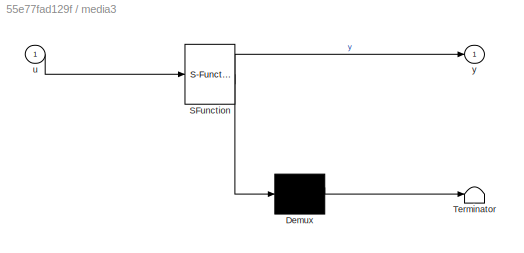
BLOCK [SubSystem] media3
  ErrorFcn = Stateflow.Translate.translate
  LibrarySourceBlock = simulink/User-Defined\nFunctions/MATLAB Function
  PermitHierarchicalResolution = ExplicitOnly
  SFBlockType = MATLAB Function
  TreatAsAtomicUnit = on
BLOCK [Demux] media3/ Demux 
  Outputs = 1
BLOCK [S-Function] media3/ SFunction 
  EnableBusSupport = on
  FunctionName = sf_sfun
  PortCounts = [1 2]
  SFcnIsStateOwnerBlock = off
  SFunctionDeploymentMode = off
  Tag = Stateflow S-Function 2
BLOCK [Terminator] media3/ Terminator 
BLOCK [Inport] media3/u
BLOCK [Outport] media3/y
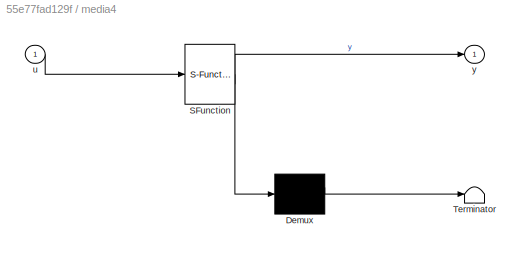
BLOCK [SubSystem] media4
  ErrorFcn = Stateflow.Translate.translate
  LibrarySourceBlock = simulink/User-Defined\nFunctions/MATLAB Function
  PermitHierarchicalResolution = ExplicitOnly
  SFBlockType = MATLAB Function
  TreatAsAtomicUnit = on
BLOCK [Demux] media4/ Demux 
  Outputs = 1
BLOCK [S-Function] media4/ SFunction 
  EnableBusSupport = on
  FunctionName = sf_sfun
  PortCounts = [1 2]
  SFcnIsStateOwnerBlock = off
  SFunctionDeploymentMode = off
  Tag = Stateflow S-Function 4
BLOCK [Terminator] media4/ Terminator 
BLOCK [Inport] media4/u
BLOCK [Outport] media4/y
BLOCK [SubSystem] media5
  ErrorFcn = Stateflow.Translate.translate
  LibrarySourceBlock = simulink/User-Defined\nFunctions/MATLAB Function
  PermitHierarchicalResolution = ExplicitOnly
  SFBlockType = MATLAB Function
  TreatAsAtomicUnit = on
BLOCK [Demux] media5/ Demux 
  Outputs = 1
BLOCK [S-Function] media5/ SFunction 
  EnableBusSupport = on
  FunctionName = sf_sfun
  PortCounts = [1 2]
  SFcnIsStateOwnerBlock = off
  SFunctionDeploymentMode = off
  Tag = Stateflow S-Function 5
BLOCK [Terminator] media5/ Terminator 
BLOCK [Inport] media5/u
BLOCK [Outport] media5/y
BLOCK [SubSystem] media6
  ErrorFcn = Stateflow.Translate.translate
  LibrarySourceBlock = simulink/User-Defined\nFunctions/MATLAB Function
  PermitHierarchicalResolution = ExplicitOnly
  SFBlockType = MATLAB Function
  TreatAsAtomicUnit = on
BLOCK [Demux] media6/ Demux 
  Outputs = 1
BLOCK [S-Function] media6/ SFunction 
  EnableBusSupport = on
  FunctionName = sf_sfun
  PortCounts = [1 2]
  SFcnIsStateOwnerBlock = off
  SFunctionDeploymentMode = off
  Tag = Stateflow S-Function 6
BLOCK [Terminator] media6/ Terminator 
BLOCK [Inport] media6/u
BLOCK [Outport] media6/y
BLOCK [SubSystem] media7
  ErrorFcn = Stateflow.Translate.translate
  LibrarySourceBlock = simulink/User-Defined\nFunctions/MATLAB Function
  PermitHierarchicalResolution = ExplicitOnly
  SFBlockType = MATLAB Function
  TreatAsAtomicUnit = on
BLOCK [Demux] media7/ Demux 
  Outputs = 1
BLOCK [S-Function] media7/ SFunction 
  EnableBusSupport = on
  FunctionName = sf_sfun
  PortCounts = [1 2]
  SFcnIsStateOwnerBlock = off
  SFunctionDeploymentMode = off
  Tag = Stateflow S-Function 7
BLOCK [Terminator] media7/ Terminator 
BLOCK [Inport] media7/u
BLOCK [Outport] media7/y
BLOCK [SubSystem] media8
  ErrorFcn = Stateflow.Translate.translate
  LibrarySourceBlock = simulink/User-Defined\nFunctions/MATLAB Function
  PermitHierarchicalResolution = ExplicitOnly
  SFBlockType = MATLAB Function
  TreatAsAtomicUnit = on
BLOCK [Demux] media8/ Demux 
  Outputs = 1
BLOCK [S-Function] media8/ SFunction 
  EnableBusSupport = on
  FunctionName = sf_sfun
  PortCounts = [1 2]
  SFcnIsStateOwnerBlock = off
  SFunctionDeploymentMode = off
  Tag = Stateflow S-Function 8
BLOCK [Terminator] media8/ Terminator 
BLOCK [Inport] media8/u
BLOCK [Outport] media8/y
ANNOTATION (root): ACCESS NETWORK
ANNOTATION (root): METRO NETWORK
ANNOTATION (root): POP
ANNOTATION (root): Access Router
ANNOTATION (root): Border Router
ANNOTATION (root): Core Network Room
ANNOTATION (root): Core Router/Provider Edge
ANNOTATION (root): Distribution Router
ANNOTATION (root): Firewall, IPS/IDS, Malware Detection&Protection
ANNOTATION (root): MASTER
ANNOTATION (root): Web App Firewalls
LINE 5G_CU_DU_Server_1 (160):1 -> TLC_conn8:4
LINE 5G_CU_DU_Server_1 (160):2 -> TLC_service8:4
LINE 5G_CU_DU_Server_1 (160):3 -> CYBER_fault8:4
LINE 5G_Core_1 (198):1 -> TLC_conn9:1
LINE 5G_Core_1 (198):2 -> TLC_service9:1
LINE 5G_Core_1 (198):3 -> CYBER_fault9:1
LINE ANTENNA_1 (56):1 -> Mobile_1 (147):1
LINE ANTENNA_1 (56):2 -> Mobile_1 (147):2
LINE ANTENNA_1 (56):3 -> Mobile_1 (147):3
LINE ANTENNA_2 (60):1 -> Mobile_2 (148):1
LINE ANTENNA_2 (60):2 -> Mobile_2 (148):2
LINE ANTENNA_2 (60):3 -> Mobile_2 (148):3
NET ASR9006_1 (9):1 -> Wire_1b (96):1, Wire_4b (13):1, Wire_8b (22):1
NET ASR9006_1 (9):2 -> Wire_1b (96):2, Wire_4b (13):2, Wire_8b (22):2
NET ASR9006_1 (9):3 -> Wire_1b (96):3, Wire_4b (13):3, Wire_8b (22):3
LINE ASR9006_1 (9):4 -> Goto10:1
NET ASR9006_2 (10):1 -> Wire_2b (97):1, Wire_7 (19):1
NET ASR9006_2 (10):2 -> Wire_2b (97):2, Wire_7 (19):2
LINE ASR9006_2 (10):4 -> Goto7:1
LINE ASR903_1 (5):4 -> Goto12:1
NET ASR920_1 (7):1 -> 5G_CU_DU_Server_1 (160):1, Wire_6b (18):1
NET ASR920_1 (7):2 -> 5G_CU_DU_Server_1 (160):2, Wire_6b (18):2
NET ASR920_1 (7):3 -> 5G_CU_DU_Server_1 (160):3, Wire_6b (18):3
LINE ASR920_1 (7):4 -> Goto11:1
LINE Alcatel_1 (26):1 -> 5G_Core_1 (198):1
LINE Alcatel_1 (26):2 -> 5G_Core_1 (198):2
LINE Alcatel_1 (26):3 -> 5G_Core_1 (198):3
LINE Alcatel_1 (26):4 -> Goto18:1
LINE BIGP_2 (35):1 -> Wire_14b (43):1
LINE BIGP_2 (35):2 -> ROUTE_ORO_9 (40):1
LINE BIGP_2 (35):3 -> Wire_14b (43):3
LINE BLM_1500 (91):1 -> Wire_15a (49):1
LINE BLM_1500 (91):2 -> ROUTE_ORO_3 (26):1
NET BLM_1500 (91):3 -> Mask Port Saturation:1, Splitter_1 (54):2
NET BLM_1500 (91):4 -> Goto28:1, Splitter_1 (54):3
LINE Building_1 (53):2 -> Goto21:1
LINE Building_2 (201):2 -> Goto22:1
LINE CISIA_MASTER (0):1 -> Display1:1
LINE CISIA_MASTER (0):2 -> Display2:1
LINE CISIA_MASTER (0):3 -> Display3:1
LINE CISIA_MASTER (0):4 -> Display4:1
LINE CYBER_fault12:1 -> FG1500_2 (33):3
LINE CYBER_fault13:1 -> BIGP_2 (35):3
LINE CYBER_fault1:1 -> Nex_2 (4):3
LINE CYBER_fault2:1 -> Nex_1 (3):3
LINE CYBER_fault3:1 -> ASR9006_2 (10):3
LINE CYBER_fault4:1 -> ASR9006_1 (9):3
LINE CYBER_fault5:1 -> ASR903_1 (5):3
LINE CYBER_fault8:1 -> ASR920_1 (7):3
LINE CYBER_fault9:1 -> Alcatel_1 (26):3
NET Constant:1 -> ANTENNA_1 (56):3, ANTENNA_2 (60):3
LINE FG1500_2 (33):1 -> Wire_12b (39):1
LINE FG1500_2 (33):2 -> ROUTE_ORO_7 (38):1
LINE FG1500_2 (33):3 -> Wire_12b (39):3
LINE FG1500_2 (33):4 -> Goto4:1
LINE FG1500_2 (33):5 -> Goto16:1
LINE From10:1 -> ASR9006_1 (9):4
LINE From11:1 -> ASR9006_2 (10):4
LINE From12:1 -> Nex_1 (3):5
LINE From13:1 -> Mux:7
LINE From14:1 -> ASR9006_2 (10):5
LINE From15:1 -> Nex_2 (4):5
LINE From17:1 -> Mux1:1
NET From1:1 -> Display9:1, Subsystem:1
LINE From20:1 -> Mux:1
LINE From21:1 -> Mux:2
LINE From22:1 -> Mux:3
LINE From23:1 -> Mux:4
LINE From24:1 -> Mux:5
LINE From25:1 -> Mux:6
LINE From26:1 -> Subsystem3:1
LINE From27:1 -> Subsystem3:2
LINE From28:1 -> Subsystem5:1
LINE From29:1 -> Subsystem5:2
LINE From30:1 -> Mux:8
LINE From31:1 -> Mux1:2
LINE From32:1 -> Subsystem2:1
LINE From33:1 -> Subsystem2:2
LINE From34:1 -> Mux1:3
LINE From36:1 -> Mux:9
LINE From37:1 -> Mux3:3
LINE From38:1 -> Mux3:1
LINE From39:1 -> Mux4:3
NET From3:1 -> BIGP_2 (35):4, FG1500_2 (33):4
LINE From40:1 -> Mux4:1
LINE From41:1 -> Mux4:2
LINE From44:1 -> Mux3:2
LINE From47:1 -> Mux5:3
LINE From48:1 -> Mux5:1
LINE From49:1 -> Mux5:2
NET From4:1 -> BIGP_2 (35):5, FG1500_2 (33):5
NET From52:1 -> BLM_1500 (91):4, Room_5 (240):1
NET From5:1 -> Display17:1, Subsystem:2
LINE From6:1 -> Nex_2 (4):4
LINE From7:1 -> Nex_1 (3):4
LINE From9:1 -> ASR9006_1 (9):5
LINE House_1 (145):1 -> Goto29:1
LINE House_1 (145):2 -> Goto37:1
LINE House_1 (145):3 -> Goto34:1
LINE House_1 (145):4 -> Goto39:1
LINE Mask Port Saturation/IN:1 -> Mask Port Saturation/Product:1
LINE Mask Port Saturation/Mask:1 -> Mask Port Saturation/Product:2
LINE Mask Port Saturation/Product:1 -> Mask Port Saturation/OUT:1
LINE Mask Port Saturation2/IN:1 -> Mask Port Saturation2/Product:1
LINE Mask Port Saturation2/Mask:1 -> Mask Port Saturation2/Product:2
LINE Mask Port Saturation2/Product:1 -> Mask Port Saturation2/OUT:1
NET Mask Port Saturation2:1 -> Wire_2b (97):3, Wire_7 (19):3
LINE Mask Port Saturation:1 -> Wire_15a (49):3
LINE Max:1 -> media5:1
LINE Mobile_1 (147):1 -> Goto30:1
LINE Mobile_1 (147):2 -> Goto35:1
LINE Mobile_1 (147):3 -> Goto32:1
LINE Mobile_1 (147):4 -> Goto38:1
LINE Mobile_2 (148):1 -> Goto31:1
LINE Mobile_2 (148):2 -> Goto36:1
LINE Mobile_2 (148):3 -> Goto33:1
LINE Mobile_2 (148):4 -> Goto40:1
LINE Mux1:1 -> media8:1
NET Mux3:1 -> Max:2, media6:1
NET Mux4:1 -> Display15:1, Max:1, media4:1
NET Mux5:1 -> Max:3, media3:1
LINE Mux:1 -> media7:1
NET Nex_1 (3):1 -> R_Wire_1 (98):1, Wire_12 (38):1, Wire_14 (42):1, Wire_2 (2):1, Wire_8 (21):1
LINE Nex_1 (3):2 -> ROUTE_ORO_1 (24):1
NET Nex_1 (3):3 -> R_Wire_1 (98):3, Wire_12 (38):3, Wire_14 (42):3, Wire_2 (2):3, Wire_8 (21):3
LINE Nex_1 (3):4 -> Goto13:1
NET Nex_2 (4):1 -> R_Wire_1b (99):1, Wire_1 (1):1, Wire_7b (20):1
LINE Nex_2 (4):2 -> ROUTE_ORO_2 (25):1
NET Nex_2 (4):3 -> R_Wire_1b (99):3, Wire_1 (1):3, Wire_7b (20):3
LINE Nex_2 (4):4 -> Goto14:1
LINE ONU_1 (55):1 -> ANTENNA_1 (56):1
LINE ONU_1 (55):2 -> ANTENNA_1 (56):2
LINE ONU_1 (55):3 -> ANTENNA_1 (56):4
LINE ONU_2 (58):1 -> ANTENNA_2 (60):1
LINE ONU_2 (58):2 -> ANTENNA_2 (60):2
LINE ONU_2 (58):3 -> ANTENNA_2 (60):4
LINE ONU_3 (282):1 -> House_1 (145):1
LINE ONU_3 (282):2 -> House_1 (145):2
LINE ONU_3 (282):3 -> House_1 (145):4
NET PowerGen_1 (46):1 -> Goto:1, Room_1 (51):1
NET PowerGen_2 (47):1 -> Goto1:1, Room_2 (52):1
NET PowerGen_3 (157):1 -> 5G_Core_1 (198):4, Alcatel_1 (26):4, Room_6 (241):1
NET PowerGen_4 (214):1 -> 5G_CU_DU_Server_1 (160):4, ASR920_1 (7):4, Goto6:1, Room_3 (200):1, Room_4 (237):1
LINE PowerGen_5 (236):1 -> ONU_1 (55):3
LINE PowerGen_6 (245):1 -> ONU_2 (58):3
NET PowerGen_7 (260):1 -> House_1 (145):3, ONU_3 (282):3
LINE ROUTE_ORO_1 (24):1 -> R_Wire_1 (98):2
LINE ROUTE_ORO_1 (24):2 -> Wire_8 (21):2
LINE ROUTE_ORO_1 (24):3 -> Wire_2 (2):2
LINE ROUTE_ORO_1 (24):4 -> Wire_12 (38):2
LINE ROUTE_ORO_1 (24):5 -> Wire_14 (42):2
LINE ROUTE_ORO_2 (25):1 -> R_Wire_1b (99):2
LINE ROUTE_ORO_2 (25):2 -> Wire_1 (1):2
LINE ROUTE_ORO_2 (25):3 -> Wire_7b (20):2
LINE ROUTE_ORO_3 (26):1 -> Wire_15a (49):2
LINE ROUTE_ORO_3 (26):2 -> Splitter_1 (54):1
LINE ROUTE_ORO_4 (27):1 -> ONU_1 (55):1
LINE ROUTE_ORO_4 (27):2 -> ONU_2 (58):1
LINE ROUTE_ORO_4 (27):3 -> ONU_3 (282):1
LINE ROUTE_ORO_7 (38):1 -> Wire_12b (39):2
LINE ROUTE_ORO_9 (40):1 -> Wire_14b (43):2
LINE R_Wire_1 (98):1 -> TLC_conn1:1
LINE R_Wire_1 (98):2 -> TLC_service1:1
LINE R_Wire_1 (98):3 -> CYBER_fault1:1
LINE R_Wire_1 (98):4 -> R_Wire_1b (99):4
LINE R_Wire_1b (99):1 -> TLC_conn2:1
LINE R_Wire_1b (99):2 -> TLC_service2:1
LINE R_Wire_1b (99):3 -> CYBER_fault2:1
LINE R_Wire_1b (99):4 -> R_Wire_1 (98):4
NET Room_1 (51):1 -> Building_1 (53):1, Goto2:1
NET Room_2 (52):1 -> Building_2 (201):1, Goto3:1
LINE Room_3 (200):1 -> 5G_CU_DU_Server_1 (160):5
LINE Room_4 (237):1 -> ASR920_1 (7):5
LINE Room_5 (240):1 -> BLM_1500 (91):5
NET Room_6 (241):1 -> 5G_Core_1 (198):5, Alcatel_1 (26):5, Building_3 (215):1
LINE Room_7 (252):1 -> ASR903_1 (5):5
LINE Splitter_1 (54):1 -> ROUTE_ORO_4 (27):1
NET Splitter_1 (54):2 -> ONU_1 (55):2, ONU_2 (58):2, ONU_3 (282):2
NET Splitter_1 (54):3 -> ONU_1 (55):4, ONU_2 (58):4, ONU_3 (282):4
LINE Splitter_1 (54):4 -> BLM_1500 (91):6
LINE Subsystem/1:1 -> Subsystem/Mux:1
LINE Subsystem/2:1 -> Subsystem/Mux:2
LINE Subsystem/Mean:1 -> Subsystem/MEAN:1
LINE Subsystem/Mux:1 -> Subsystem/Mean:1
LINE Subsystem2/1:1 -> Subsystem2/Mux:1
LINE Subsystem2/2:1 -> Subsystem2/Mux:2
LINE Subsystem2/Mean:1 -> Subsystem2/MEAN:1
LINE Subsystem2/Mux:1 -> Subsystem2/Mean:1
LINE Subsystem2:1 -> SAVE_3 (3):1
LINE Subsystem3/1:1 -> Subsystem3/Mux:1
LINE Subsystem3/2:1 -> Subsystem3/Mux:2
LINE Subsystem3/Mean:1 -> Subsystem3/MEAN:1
LINE Subsystem3/Mux:1 -> Subsystem3/Mean:1
NET Subsystem3:1 -> SAVE_6 (6):1, Subsystem4:1
LINE Subsystem4/1:1 -> Subsystem4/Mux:1
LINE Subsystem4/2:1 -> Subsystem4/Mux:2
LINE Subsystem4/Mean:1 -> Subsystem4/MEAN:1
LINE Subsystem4/Mux:1 -> Subsystem4/Mean:1
NET Subsystem4:1 -> SAVE_4 (4):1, Subsystem6:2
LINE Subsystem5/1:1 -> Subsystem5/Mux:1
LINE Subsystem5/2:1 -> Subsystem5/Mux:2
LINE Subsystem5/Mean:1 -> Subsystem5/MEAN:1
LINE Subsystem5/Mux:1 -> Subsystem5/Mean:1
NET Subsystem5:1 -> SAVE_7 (7):1, Subsystem6:1
LINE Subsystem6/1:1 -> Subsystem6/Mux:1
LINE Subsystem6/2:1 -> Subsystem6/Mux:2
LINE Subsystem6/3:1 -> Subsystem6/Mux:3
LINE Subsystem6/Mean:1 -> Subsystem6/MEAN:1
LINE Subsystem6/Mux:1 -> Subsystem6/Mean:1
LINE Subsystem6:1 -> SAVE_8 (8):1
NET Subsystem:1 -> Display16:1, SAVE_1 (3):1
LINE TLC_conn11:1 -> FG1500_2 (33):1
LINE TLC_conn12:1 -> BIGP_2 (35):1
LINE TLC_conn1:1 -> Nex_2 (4):1
LINE TLC_conn2:1 -> Nex_1 (3):1
LINE TLC_conn3:1 -> ASR9006_2 (10):1
LINE TLC_conn4:1 -> ASR9006_1 (9):1
LINE TLC_conn5:1 -> ASR903_1 (5):1
LINE TLC_conn8:1 -> ASR920_1 (7):1
LINE TLC_conn9:1 -> Alcatel_1 (26):1
LINE TLC_service12:1 -> FG1500_2 (33):2
LINE TLC_service13:1 -> BIGP_2 (35):2
LINE TLC_service1:1 -> Nex_2 (4):2
LINE TLC_service2:1 -> Nex_1 (3):2
LINE TLC_service3:1 -> ASR9006_2 (10):2
LINE TLC_service4:1 -> ASR9006_1 (9):2
LINE TLC_service5:1 -> ASR903_1 (5):2
LINE TLC_service8:1 -> ASR920_1 (7):2
LINE TLC_service9:1 -> Alcatel_1 (26):2
LINE Wire_1 (1):1 -> TLC_conn4:2
LINE Wire_1 (1):2 -> TLC_service4:2
LINE Wire_1 (1):3 -> CYBER_fault4:2
LINE Wire_1 (1):4 -> Wire_1b (96):4
LINE Wire_10 (30):4 -> Wire_10b (31):4
LINE Wire_10b (31):4 -> Wire_10 (30):4
LINE Wire_12 (38):1 -> TLC_conn11:1
LINE Wire_12 (38):2 -> TLC_service12:1
LINE Wire_12 (38):3 -> CYBER_fault12:1
LINE Wire_12 (38):4 -> Wire_12b (39):4
LINE Wire_12b (39):1 -> TLC_conn2:4
LINE Wire_12b (39):2 -> TLC_service2:4
LINE Wire_12b (39):3 -> CYBER_fault2:4
LINE Wire_12b (39):4 -> Wire_12 (38):4
LINE Wire_14 (42):1 -> TLC_conn12:1
LINE Wire_14 (42):2 -> TLC_service13:1
LINE Wire_14 (42):3 -> CYBER_fault13:1
LINE Wire_14 (42):4 -> Wire_14b (43):4
LINE Wire_14b (43):1 -> TLC_conn2:5
LINE Wire_14b (43):2 -> TLC_service2:5
LINE Wire_14b (43):3 -> CYBER_fault2:5
LINE Wire_14b (43):4 -> Wire_14 (42):4
LINE Wire_15 (44):1 -> BLM_1500 (91):1
LINE Wire_15 (44):2 -> BLM_1500 (91):2
LINE Wire_15 (44):3 -> BLM_1500 (91):3
LINE Wire_15 (44):4 -> Wire_15a (49):4
LINE Wire_15a (49):4 -> Wire_15 (44):4
LINE Wire_1b (96):1 -> TLC_conn1:2
LINE Wire_1b (96):2 -> TLC_service1:2
LINE Wire_1b (96):3 -> CYBER_fault1:2
LINE Wire_1b (96):4 -> Wire_1 (1):4
LINE Wire_2 (2):1 -> TLC_conn3:2
LINE Wire_2 (2):2 -> TLC_service3:2
LINE Wire_2 (2):3 -> CYBER_fault3:2
LINE Wire_2 (2):4 -> Wire_2b (97):4
LINE Wire_2b (97):1 -> TLC_conn2:2
LINE Wire_2b (97):2 -> TLC_service2:2
LINE Wire_2b (97):3 -> CYBER_fault2:2
LINE Wire_2b (97):4 -> Wire_2 (2):4
LINE Wire_4 (12):1 -> TLC_conn4:3
LINE Wire_4 (12):2 -> TLC_service4:3
LINE Wire_4 (12):3 -> CYBER_fault4:3
LINE Wire_4 (12):4 -> Wire_4b (13):4
LINE Wire_4b (13):1 -> TLC_conn5:1
LINE Wire_4b (13):2 -> TLC_service5:1
LINE Wire_4b (13):3 -> CYBER_fault5:1
LINE Wire_4b (13):4 -> Wire_4 (12):4
LINE Wire_6 (17):1 -> TLC_conn8:1
LINE Wire_6 (17):2 -> TLC_service8:1
LINE Wire_6 (17):3 -> CYBER_fault8:1
LINE Wire_6 (17):4 -> Wire_6b (18):4
LINE Wire_6b (18):4 -> Wire_6 (17):4
LINE Wire_7 (19):1 -> TLC_conn1:3
LINE Wire_7 (19):2 -> TLC_service1:3
LINE Wire_7 (19):3 -> CYBER_fault1:3
LINE Wire_7 (19):4 -> Wire_7b (20):4
LINE Wire_7b (20):1 -> TLC_conn3:1
LINE Wire_7b (20):2 -> TLC_service3:1
LINE Wire_7b (20):3 -> CYBER_fault3:1
LINE Wire_7b (20):4 -> Wire_7 (19):4
LINE Wire_8 (21):1 -> TLC_conn4:1
LINE Wire_8 (21):2 -> TLC_service4:1
LINE Wire_8 (21):3 -> CYBER_fault4:1
LINE Wire_8 (21):4 -> Wire_8b (22):4
LINE Wire_8b (22):1 -> TLC_conn2:3
LINE Wire_8b (22):2 -> TLC_service2:3
LINE Wire_8b (22):3 -> CYBER_fault2:3
LINE Wire_8b (22):4 -> Wire_8 (21):4
LINE media3:1 -> SAVE_23 (23):1
LINE media4:1 -> SAVE_20 (20):1
LINE media5:1 -> SAVE_22 (22):1
LINE media6:1 -> SAVE_21 (21):1
NET media7:1 -> SAVE_5 (5):1, Subsystem4:2
NET media8:1 -> SAVE_2 (2):1, Subsystem6:3
note: NET lines group one-source signal fan-out (src -> all destinations, sorted); 1:1 wires keep LINE
CHART media4 states=1 transitions=1
  STATE_LABEL 'eML_blk_kernel()'
  STATE_LABEL 'SCRIPT:\nfunction y = media(u)\n\ny = mean(u);\n'
CHART media5 states=1 transitions=1
  STATE_LABEL 'eML_blk_kernel()'
  STATE_LABEL 'SCRIPT:\nfunction y = media(u)\n\ny = mean(u);\n'
CHART media6 states=1 transitions=1
  STATE_LABEL 'eML_blk_kernel()'
  STATE_LABEL 'SCRIPT:\nfunction y = media(u)\n\ny = mean(u);\n'
CHART media7 states=1 transitions=1
  STATE_LABEL 'eML_blk_kernel()'
  STATE_LABEL 'SCRIPT:\nfunction y = media(u)\n\ny = mean(u);\n'
CHART media8 states=1 transitions=1
  STATE_LABEL 'eML_blk_kernel()'
  STATE_LABEL 'SCRIPT:\nfunction y = media(u)\n\ny = mean(u);\n'
CHART media3 states=1 transitions=1
  STATE_LABEL 'eML_blk_kernel()'
  STATE_LABEL 'SCRIPT:\nfunction y = media(u)\n\ny = mean(u);\n'
CHART  states=0 transitions=0
CHART  states=0 transitions=0
CHART  states=0 transitions=0
CHART  states=0 transitions=0
CHART  states=0 transitions=0
CHART  states=0 transitions=0
